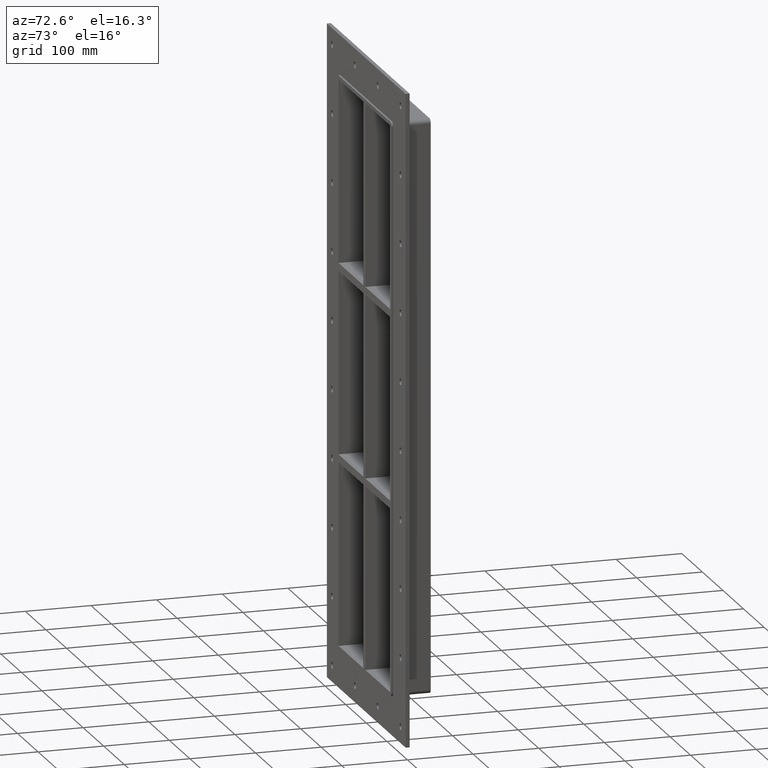
[diagram: clean part render]
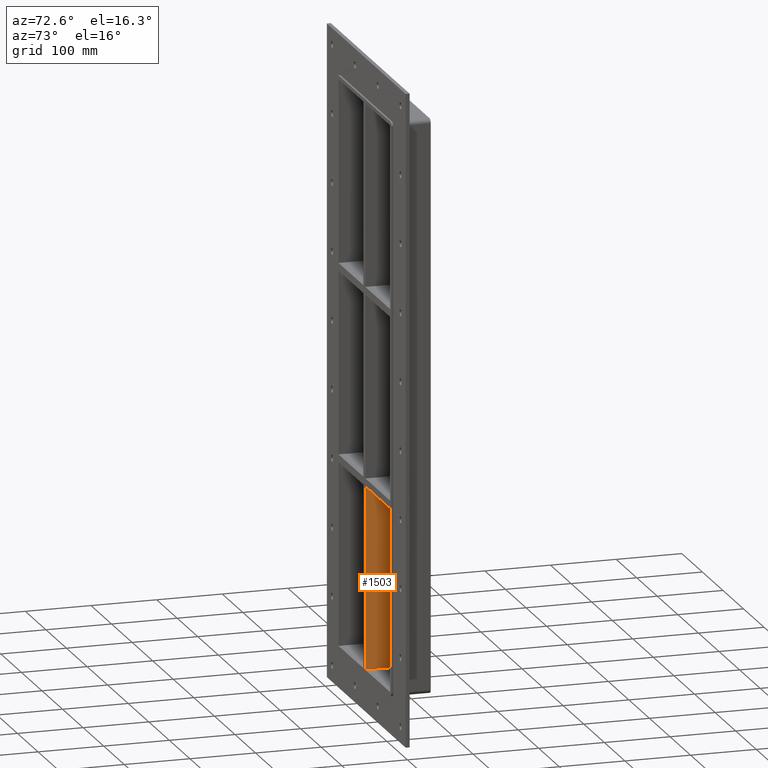
[diagram: same view with one face highlighted and labeled with its STEP entity id]
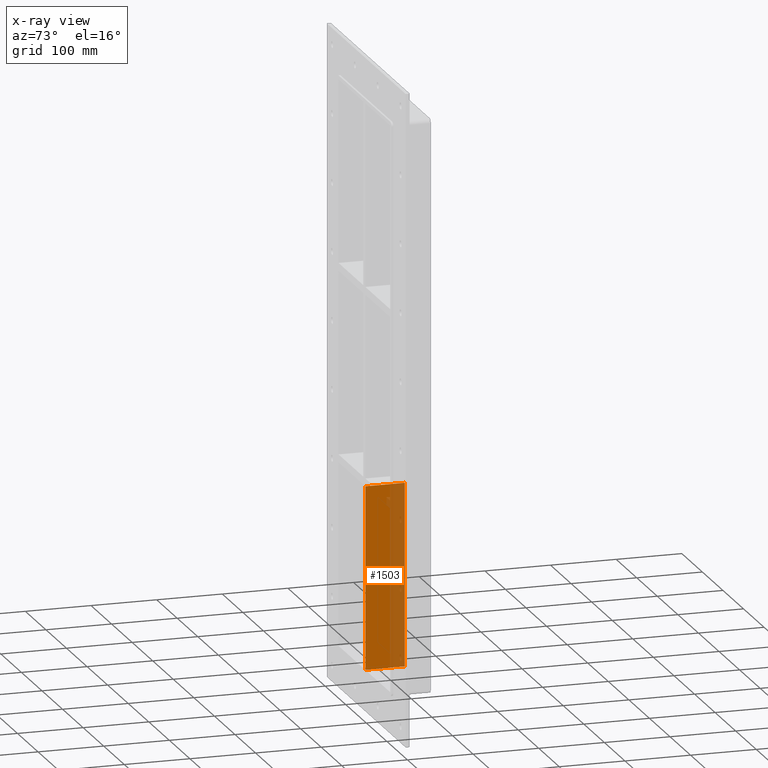
[diagram: x-ray of the same camera — body ghosted, the highlighted face saturated]
A machine part, auxiliary view. The second image highlights one B-rep face of the part: STEP entity #1503.
The next image is the same camera in x-ray: the body ghosted, the highlighted face saturated — about 38% of this face is hidden behind the body in this view.
In plain terms, the highlighted planar face has unit normal (1, 0, 0).
Its self-contained STEP definition (entity closure, byte-faithful):
#1091=CARTESIAN_POINT('',(5.0,57.0,-151.00000000000929));
#1092=VERTEX_POINT('',#1091);
#1093=CARTESIAN_POINT('',(5.0,-3.0,-151.00000000000929));
#1094=VERTEX_POINT('',#1093);
#1095=CARTESIAN_POINT('',(5.0,57.0,-151.00000000000932));
#1096=DIRECTION('',(0.0,-1.0,0.0));
#1097=VECTOR('',#1096,60.0);
#1098=LINE('',#1095,#1097);
#1099=EDGE_CURVE('',#1092,#1094,#1098,.T.);
#1421=CARTESIAN_POINT('',(5.0,57.0,-428.99999999998431));
#1422=VERTEX_POINT('',#1421);
#1423=CARTESIAN_POINT('',(5.0,57.0,-151.00000000000927));
#1424=DIRECTION('',(0.0,0.0,-1.0));
#1425=VECTOR('',#1424,277.99999999997499);
#1426=LINE('',#1423,#1425);
#1427=EDGE_CURVE('',#1092,#1422,#1426,.T.);
#1480=CARTESIAN_POINT('',(5.0,-3.0,429.00000000000006));
#1481=DIRECTION('',(1.0,0.0,0.0));
#1482=DIRECTION('',(0.0,0.0,-1.0));
#1483=AXIS2_PLACEMENT_3D('',#1480,#1481,#1482);
#1484=PLANE('',#1483);
#1485=ORIENTED_EDGE('',*,*,#1099,.T.);
#1486=CARTESIAN_POINT('',(5.0,-3.0,-428.99999999998431));
#1487=VERTEX_POINT('',#1486);
#1488=CARTESIAN_POINT('',(5.0,-3.0,-151.00000000000927));
#1489=DIRECTION('',(0.0,0.0,-1.0));
#1490=VECTOR('',#1489,277.99999999997499);
#1491=LINE('',#1488,#1490);
#1492=EDGE_CURVE('',#1094,#1487,#1491,.T.);
#1493=ORIENTED_EDGE('',*,*,#1492,.T.);
#1494=CARTESIAN_POINT('',(5.0,57.000000000000007,-429.00000000000006));
#1495=DIRECTION('',(0.0,-1.0,0.0));
#1496=VECTOR('',#1495,60.000000000000007);
#1497=LINE('',#1494,#1496);
#1498=EDGE_CURVE('',#1422,#1487,#1497,.T.);
#1499=ORIENTED_EDGE('',*,*,#1498,.F.);
#1500=ORIENTED_EDGE('',*,*,#1427,.F.);
#1501=EDGE_LOOP('',(#1485,#1493,#1499,#1500));
#1502=FACE_OUTER_BOUND('',#1501,.T.);
#1503=ADVANCED_FACE('',(#1502),#1484,.T.);